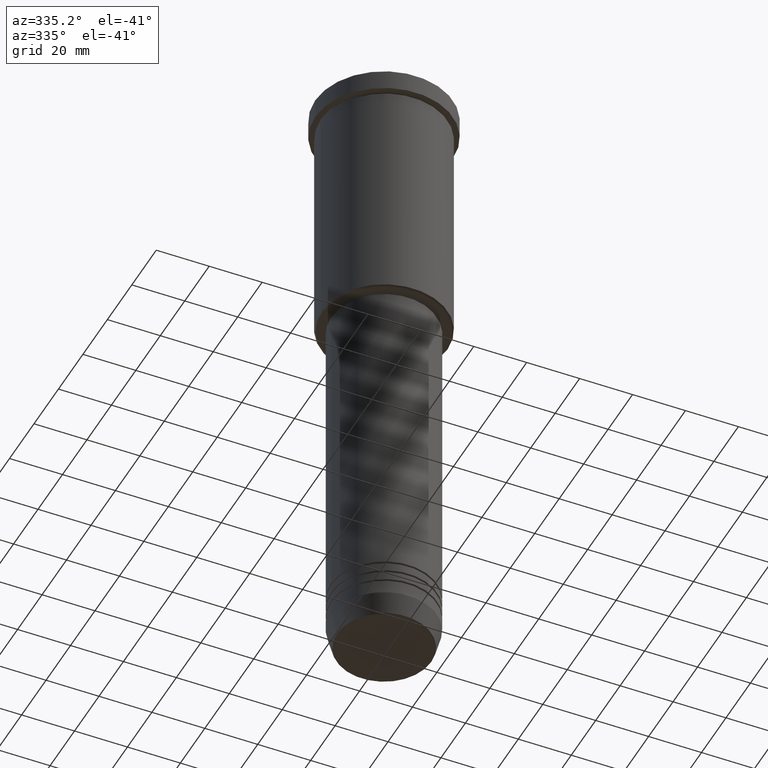
[diagram: clean part render]
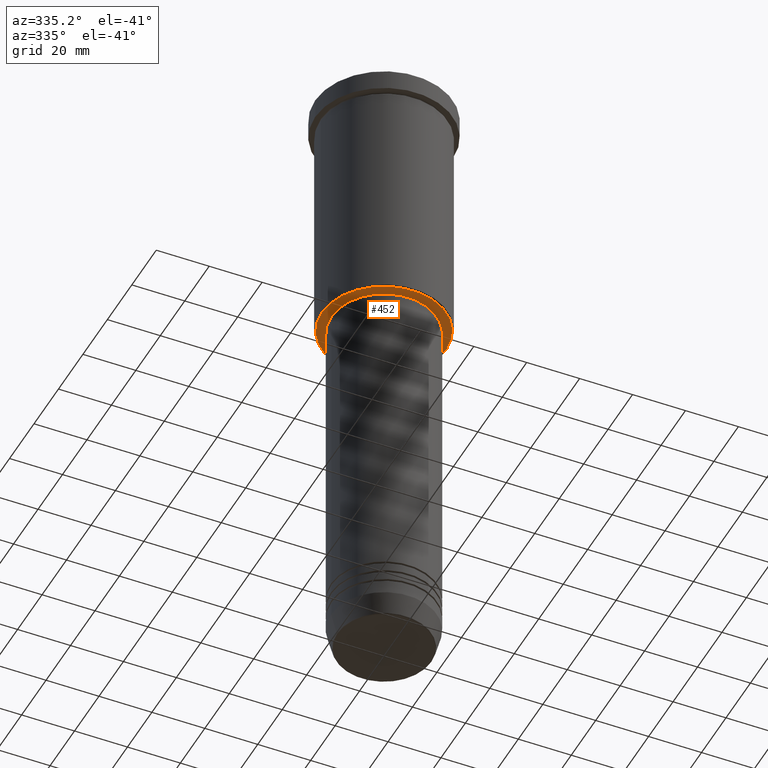
[diagram: same view with one face highlighted and labeled with its STEP entity id]
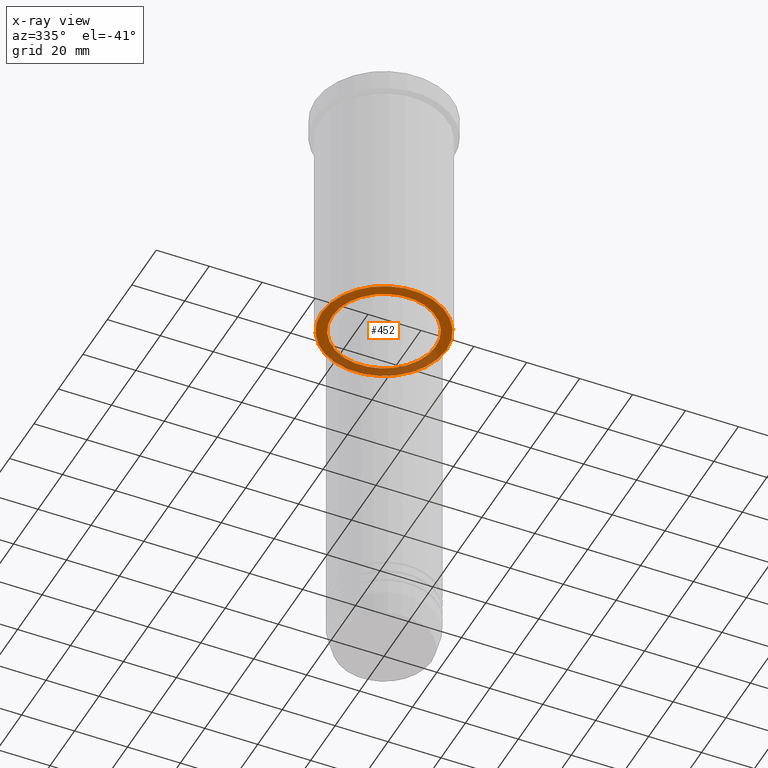
[diagram: x-ray of the same camera — body ghosted, the highlighted face saturated]
A machine part, auxiliary view. The second image highlights one B-rep face of the part: STEP entity #452.
The next image is the same camera in x-ray: the body ghosted, the highlighted face saturated — about 32% of this face is hidden behind the body in this view.
In plain terms, the highlighted planar face has unit normal (0, 0, -1).
Its self-contained STEP definition (entity closure, byte-faithful):
#35 = EDGE_CURVE ( 'NONE', #768, #1125, #1156, .T. ) ;
#274 = CIRCLE ( 'NONE', #651, 19.50000000000000355 ) ;
#308 = AXIS2_PLACEMENT_3D ( 'NONE', #695, #990, #816 ) ;
#357 = FACE_BOUND ( 'NONE', #554, .T. ) ;
#448 = CARTESIAN_POINT ( 'NONE',  ( 0.000000000000000000, 0.000000000000000000, -96.00000000000000000 ) ) ;
#451 = CARTESIAN_POINT ( 'NONE',  ( 0.000000000000000000, 0.000000000000000000, -96.00000000000000000 ) ) ;
#452 = ADVANCED_FACE ( 'NONE', ( #1178, #357 ), #1099, .T. ) ;
#465 = DIRECTION ( 'NONE',  ( -1.000000000000000000, 0.000000000000000000, 0.000000000000000000 ) ) ;
#493 = ORIENTED_EDGE ( 'NONE', *, *, #1005, .T. ) ;
#554 = EDGE_LOOP ( 'NONE', ( #1081, #493 ) ) ;
#559 = DIRECTION ( 'NONE',  ( -0.000000000000000000, -0.000000000000000000, 1.000000000000000000 ) ) ;
#633 = AXIS2_PLACEMENT_3D ( 'NONE', #717, #828, #465 ) ;
#651 = AXIS2_PLACEMENT_3D ( 'NONE', #448, #802, #807 ) ;
#695 = CARTESIAN_POINT ( 'NONE',  ( 0.000000000000000000, 24.00000000000000000, -96.00000000000000000 ) ) ;
#706 = DIRECTION ( 'NONE',  ( 0.000000000000000000, 0.000000000000000000, -1.000000000000000000 ) ) ;
#717 = CARTESIAN_POINT ( 'NONE',  ( 0.000000000000000000, 0.000000000000000000, -96.00000000000000000 ) ) ;
#764 = CARTESIAN_POINT ( 'NONE',  ( 19.50000000000000355, 0.000000000000000000, -96.00000000000000000 ) ) ;
#768 = VERTEX_POINT ( 'NONE', #890 ) ;
#772 = CIRCLE ( 'NONE', #633, 23.50000000000004619 ) ;
#802 = DIRECTION ( 'NONE',  ( -0.000000000000000000, -0.000000000000000000, 1.000000000000000000 ) ) ;
#807 = DIRECTION ( 'NONE',  ( 1.000000000000000000, 0.000000000000000000, 0.000000000000000000 ) ) ;
#816 = DIRECTION ( 'NONE',  ( -1.000000000000000000, 0.000000000000000000, -0.000000000000000000 ) ) ;
#828 = DIRECTION ( 'NONE',  ( 0.000000000000000000, 0.000000000000000000, -1.000000000000000000 ) ) ;
#853 = CARTESIAN_POINT ( 'NONE',  ( 23.50000000000004619, 0.000000000000000000, -96.00000000000000000 ) ) ;
#868 = EDGE_CURVE ( 'NONE', #1125, #768, #772, .T. ) ;
#890 = CARTESIAN_POINT ( 'NONE',  ( -23.50000000000004619, 2.908536147974966868E-15, -96.00000000000000000 ) ) ;
#894 = CIRCLE ( 'NONE', #1182, 19.50000000000000355 ) ;
#903 = ORIENTED_EDGE ( 'NONE', *, *, #35, .T. ) ;
#905 = EDGE_CURVE ( 'NONE', #1134, #1169, #894, .T. ) ;
#908 = CARTESIAN_POINT ( 'NONE',  ( 0.000000000000000000, 0.000000000000000000, -96.00000000000000000 ) ) ;
#934 = ORIENTED_EDGE ( 'NONE', *, *, #868, .T. ) ;
#990 = DIRECTION ( 'NONE',  ( 0.000000000000000000, 0.000000000000000000, -1.000000000000000000 ) ) ;
#995 = DIRECTION ( 'NONE',  ( 1.000000000000000000, 0.000000000000000000, 0.000000000000000000 ) ) ;
#1005 = EDGE_CURVE ( 'NONE', #1169, #1134, #274, .T. ) ;
#1029 = CARTESIAN_POINT ( 'NONE',  ( -19.50000000000000355, 2.388061258337339333E-15, -96.00000000000000000 ) ) ;
#1081 = ORIENTED_EDGE ( 'NONE', *, *, #905, .T. ) ;
#1089 = DIRECTION ( 'NONE',  ( -1.000000000000000000, 0.000000000000000000, 0.000000000000000000 ) ) ;
#1090 = EDGE_LOOP ( 'NONE', ( #934, #903 ) ) ;
#1099 = PLANE ( 'NONE',  #308 ) ;
#1117 = AXIS2_PLACEMENT_3D ( 'NONE', #451, #706, #1089 ) ;
#1125 = VERTEX_POINT ( 'NONE', #853 ) ;
#1134 = VERTEX_POINT ( 'NONE', #764 ) ;
#1156 = CIRCLE ( 'NONE', #1117, 23.50000000000004619 ) ;
#1169 = VERTEX_POINT ( 'NONE', #1029 ) ;
#1178 = FACE_OUTER_BOUND ( 'NONE', #1090, .T. ) ;
#1182 = AXIS2_PLACEMENT_3D ( 'NONE', #908, #559, #995 ) ;